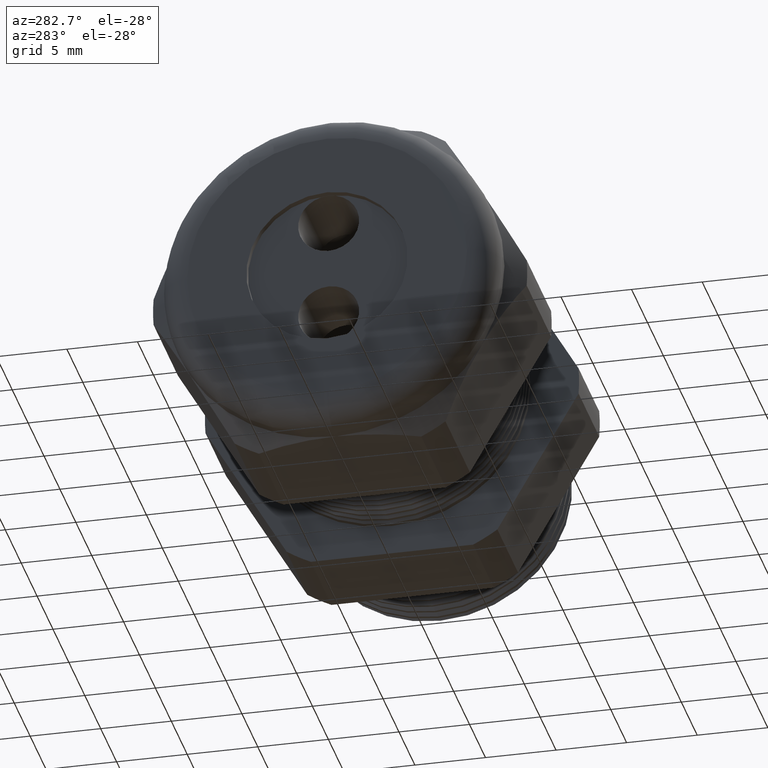
[diagram: clean part render]
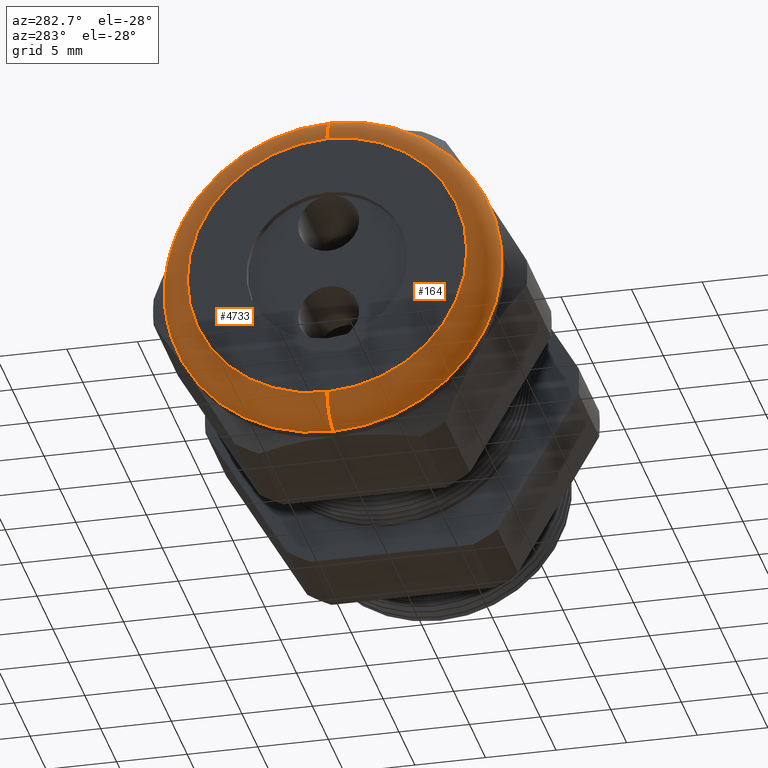
[diagram: same view with one multi-face feature highlighted, each face labeled with its STEP entity id]
A machine part, auxiliary view. The highlighted faces form ONE feature: a constant-radius fillet chain: 2 tangent blend faces with common blend radius 2.032 mm. The faces share edges in the B-rep.
Their STEP definitions:
[1] entity #164 (Torus):
#148 = ORIENTED_EDGE ( 'NONE', *, *, #4727, .F. ) ;
#150 = ORIENTED_EDGE ( 'NONE', *, *, #347, .F. ) ;
#151 = ORIENTED_EDGE ( 'NONE', *, *, #4762, .T. ) ;
#153 = ORIENTED_EDGE ( 'NONE', *, *, #377, .F. ) ;
#155 = EDGE_LOOP ( 'NONE', ( #148, #150, #151, #153 ) ) ;
#164 = ADVANCED_FACE ( 'NONE', ( #1279 ), #1277, .T. ) ;
#347 = EDGE_CURVE ( 'NONE', #4738, #4731, #1538, .T. ) ;
#377 = EDGE_CURVE ( 'NONE', #4717, #4721, #1608, .T. ) ;
#1275 = DIRECTION ( 'NONE',  ( -1.000000000000000000, 0.0000000000000000000, 0.0000000000000000000 ) ) ;
#1276 = AXIS2_PLACEMENT_3D ( 'NONE', #1278, #1275, #1342 ) ;
#1277 = TOROIDAL_SURFACE ( 'NONE', #1276, 0.3899999999999999600, 0.08000000000000000200 ) ;
#1278 = CARTESIAN_POINT ( 'NONE',  ( -1.290000000000000300, 0.0000000000000000000, 0.0000000000000000000 ) ) ;
#1279 = FACE_OUTER_BOUND ( 'NONE', #155, .T. ) ;
#1342 = DIRECTION ( 'NONE',  ( 0.0000000000000000000, 0.0000000000000000000, 1.000000000000000000 ) ) ;
#1538 = CIRCLE ( 'NONE', #1597, 0.4699999999999999200 ) ;
#1594 = DIRECTION ( 'NONE',  ( 0.0000000000000000000, 0.0000000000000000000, 1.000000000000000000 ) ) ;
#1595 = DIRECTION ( 'NONE',  ( 1.000000000000000000, 0.0000000000000000000, 0.0000000000000000000 ) ) ;
#1596 = CARTESIAN_POINT ( 'NONE',  ( -1.290000000000000300, 0.0000000000000000000, 0.0000000000000000000 ) ) ;
#1597 = AXIS2_PLACEMENT_3D ( 'NONE', #1596, #1595, #1594 ) ;
#1604 = DIRECTION ( 'NONE',  ( 0.0000000000000000000, 0.0000000000000000000, 1.000000000000000000 ) ) ;
#1605 = DIRECTION ( 'NONE',  ( -1.000000000000000000, 0.0000000000000000000, 0.0000000000000000000 ) ) ;
#1606 = CARTESIAN_POINT ( 'NONE',  ( -1.370000000000000100, 0.0000000000000000000, 0.0000000000000000000 ) ) ;
#1607 = AXIS2_PLACEMENT_3D ( 'NONE', #1606, #1605, #1604 ) ;
#1608 = CIRCLE ( 'NONE', #1607, 0.3899999999999999600 ) ;
#3426 = CIRCLE ( 'NONE', #3686, 0.07999999999999996000 ) ;
#3679 = DIRECTION ( 'NONE',  ( 0.0000000000000000000, -1.000000000000000000, 0.0000000000000000000 ) ) ;
#3680 = CARTESIAN_POINT ( 'NONE',  ( -1.290000000000000300, 0.0000000000000000000, 0.3899999999999999600 ) ) ;
#3686 = AXIS2_PLACEMENT_3D ( 'NONE', #3680, #3679, #3935 ) ;
#3840 = CARTESIAN_POINT ( 'NONE',  ( -1.370000000000000100, 5.265981236333617600E-017, -0.3899999999999999600 ) ) ;
#3876 = CARTESIAN_POINT ( 'NONE',  ( -1.290000000000000300, 0.0000000000000000000, -0.4699999999999999200 ) ) ;
#3879 = DIRECTION ( 'NONE',  ( 0.0000000000000000000, -1.224646799147353900E-016, 1.000000000000000000 ) ) ;
#3880 = DIRECTION ( 'NONE',  ( 0.0000000000000000000, 1.000000000000000000, 1.224646799147353200E-016 ) ) ;
#3881 = CARTESIAN_POINT ( 'NONE',  ( -1.290000000000000300, 4.776122516674676800E-017, -0.3899999999999999600 ) ) ;
#3882 = AXIS2_PLACEMENT_3D ( 'NONE', #3881, #3880, #3879 ) ;
#3883 = CIRCLE ( 'NONE', #3882, 0.07999999999999996000 ) ;
#3894 = CARTESIAN_POINT ( 'NONE',  ( -1.370000000000000100, 0.0000000000000000000, 0.3899999999999999600 ) ) ;
#3925 = CARTESIAN_POINT ( 'NONE',  ( -1.290000000000000300, 5.755839955992558400E-017, 0.4699999999999999200 ) ) ;
#3935 = DIRECTION ( 'NONE',  ( 0.0000000000000000000, 0.0000000000000000000, -1.000000000000000000 ) ) ;
#4717 = VERTEX_POINT ( 'NONE', #3840 ) ;
#4721 = VERTEX_POINT ( 'NONE', #3894 ) ;
#4727 = EDGE_CURVE ( 'NONE', #4731, #4717, #3883, .T. ) ;
#4731 = VERTEX_POINT ( 'NONE', #3876 ) ;
#4738 = VERTEX_POINT ( 'NONE', #3925 ) ;
#4762 = EDGE_CURVE ( 'NONE', #4738, #4721, #3426, .T. ) ;
[2] entity #4733 (Torus):
#3426 = CIRCLE ( 'NONE', #3686, 0.07999999999999996000 ) ;
#3679 = DIRECTION ( 'NONE',  ( 0.0000000000000000000, -1.000000000000000000, 0.0000000000000000000 ) ) ;
#3680 = CARTESIAN_POINT ( 'NONE',  ( -1.290000000000000300, 0.0000000000000000000, 0.3899999999999999600 ) ) ;
#3686 = AXIS2_PLACEMENT_3D ( 'NONE', #3680, #3679, #3935 ) ;
#3840 = CARTESIAN_POINT ( 'NONE',  ( -1.370000000000000100, 5.265981236333617600E-017, -0.3899999999999999600 ) ) ;
#3873 = CARTESIAN_POINT ( 'NONE',  ( -1.290000000000000300, 0.0000000000000000000, 0.0000000000000000000 ) ) ;
#3874 = FACE_OUTER_BOUND ( 'NONE', #4742, .T. ) ;
#3876 = CARTESIAN_POINT ( 'NONE',  ( -1.290000000000000300, 0.0000000000000000000, -0.4699999999999999200 ) ) ;
#3879 = DIRECTION ( 'NONE',  ( 0.0000000000000000000, -1.224646799147353900E-016, 1.000000000000000000 ) ) ;
#3880 = DIRECTION ( 'NONE',  ( 0.0000000000000000000, 1.000000000000000000, 1.224646799147353200E-016 ) ) ;
#3881 = CARTESIAN_POINT ( 'NONE',  ( -1.290000000000000300, 4.776122516674676800E-017, -0.3899999999999999600 ) ) ;
#3882 = AXIS2_PLACEMENT_3D ( 'NONE', #3881, #3880, #3879 ) ;
#3883 = CIRCLE ( 'NONE', #3882, 0.07999999999999996000 ) ;
#3884 = DIRECTION ( 'NONE',  ( 0.0000000000000000000, 0.0000000000000000000, 1.000000000000000000 ) ) ;
#3885 = DIRECTION ( 'NONE',  ( -1.000000000000000000, 0.0000000000000000000, 0.0000000000000000000 ) ) ;
#3886 = CARTESIAN_POINT ( 'NONE',  ( -1.370000000000000100, 0.0000000000000000000, 0.0000000000000000000 ) ) ;
#3887 = AXIS2_PLACEMENT_3D ( 'NONE', #3886, #3885, #3884 ) ;
#3888 = CIRCLE ( 'NONE', #3887, 0.3899999999999999600 ) ;
#3894 = CARTESIAN_POINT ( 'NONE',  ( -1.370000000000000100, 0.0000000000000000000, 0.3899999999999999600 ) ) ;
#3905 = DIRECTION ( 'NONE',  ( 1.000000000000000000, 0.0000000000000000000, 0.0000000000000000000 ) ) ;
#3906 = CARTESIAN_POINT ( 'NONE',  ( -1.290000000000000300, 0.0000000000000000000, 0.0000000000000000000 ) ) ;
#3907 = AXIS2_PLACEMENT_3D ( 'NONE', #3906, #3905, #3967 ) ;
#3908 = CIRCLE ( 'NONE', #3907, 0.4699999999999999200 ) ;
#3925 = CARTESIAN_POINT ( 'NONE',  ( -1.290000000000000300, 5.755839955992558400E-017, 0.4699999999999999200 ) ) ;
#3930 = DIRECTION ( 'NONE',  ( 0.0000000000000000000, 0.0000000000000000000, 1.000000000000000000 ) ) ;
#3931 = DIRECTION ( 'NONE',  ( -1.000000000000000000, 0.0000000000000000000, 0.0000000000000000000 ) ) ;
#3932 = AXIS2_PLACEMENT_3D ( 'NONE', #3873, #3931, #3930 ) ;
#3933 = TOROIDAL_SURFACE ( 'NONE', #3932, 0.3899999999999999600, 0.08000000000000000200 ) ;
#3935 = DIRECTION ( 'NONE',  ( 0.0000000000000000000, 0.0000000000000000000, -1.000000000000000000 ) ) ;
#3967 = DIRECTION ( 'NONE',  ( 0.0000000000000000000, 0.0000000000000000000, 1.000000000000000000 ) ) ;
#4717 = VERTEX_POINT ( 'NONE', #3840 ) ;
#4719 = ORIENTED_EDGE ( 'NONE', *, *, #4727, .T. ) ;
#4721 = VERTEX_POINT ( 'NONE', #3894 ) ;
#4723 = ORIENTED_EDGE ( 'NONE', *, *, #4725, .F. ) ;
#4725 = EDGE_CURVE ( 'NONE', #4721, #4717, #3888, .T. ) ;
#4727 = EDGE_CURVE ( 'NONE', #4731, #4717, #3883, .T. ) ;
#4731 = VERTEX_POINT ( 'NONE', #3876 ) ;
#4733 = ADVANCED_FACE ( 'NONE', ( #3874 ), #3933, .T. ) ;
#4735 = ORIENTED_EDGE ( 'NONE', *, *, #4749, .F. ) ;
#4738 = VERTEX_POINT ( 'NONE', #3925 ) ;
#4742 = EDGE_LOOP ( 'NONE', ( #4735, #4719, #4723, #4767 ) ) ;
#4749 = EDGE_CURVE ( 'NONE', #4731, #4738, #3908, .T. ) ;
#4762 = EDGE_CURVE ( 'NONE', #4738, #4721, #3426, .T. ) ;
#4767 = ORIENTED_EDGE ( 'NONE', *, *, #4762, .F. ) ;